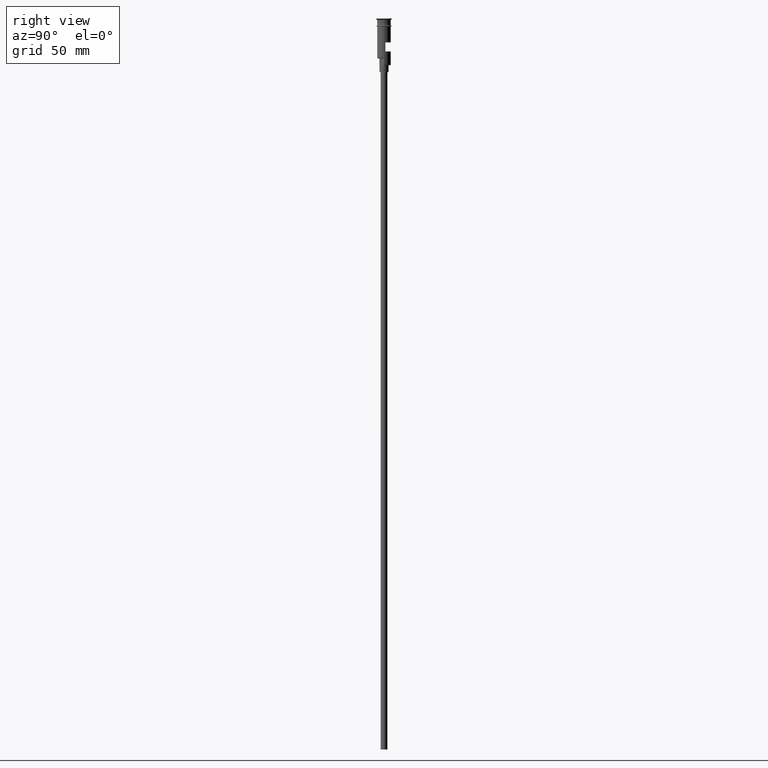
[diagram: clean part render]
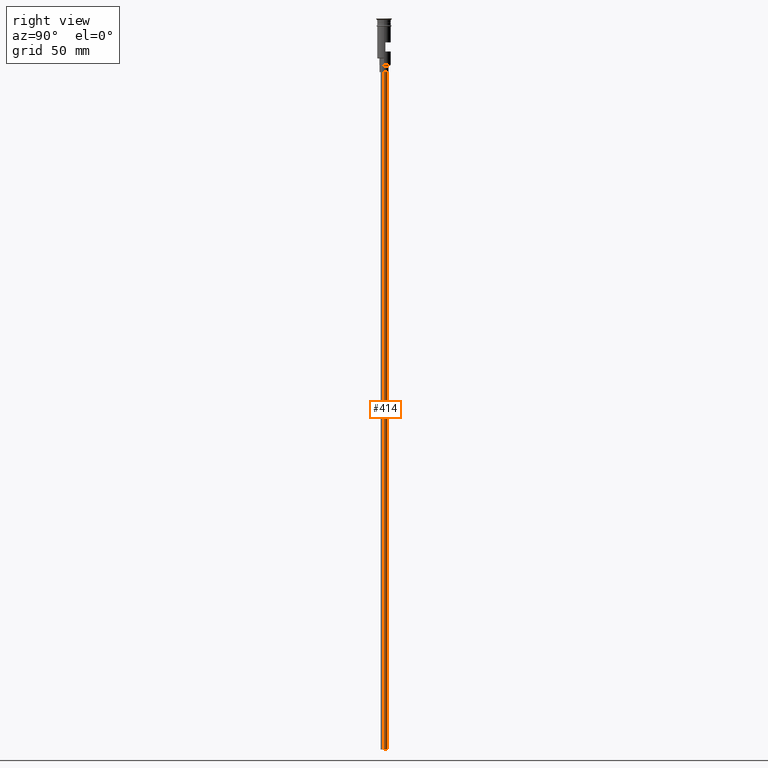
[diagram: same view with one face highlighted and labeled with its STEP entity id]
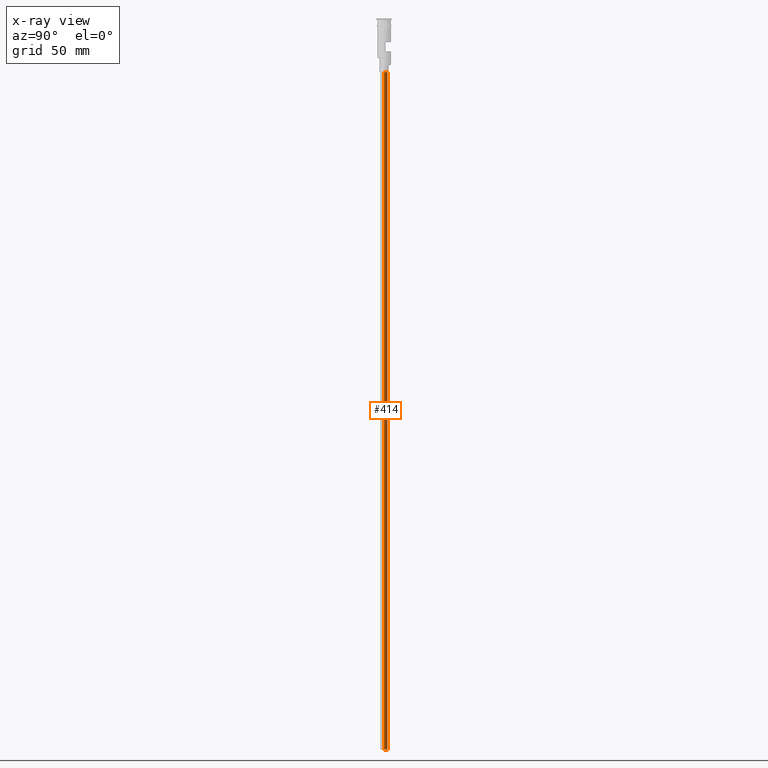
[diagram: x-ray of the same camera — body ghosted, the highlighted face saturated]
A machine part, right view. The second image highlights one B-rep face of the part: STEP entity #414.
The next image is the same camera in x-ray: the body ghosted, the highlighted face saturated — about 0% of this face is hidden behind the body in this view.
In plain terms, the highlighted cylindrical surface (edge-blend (fillet) strip) has radius 1.5 mm, axis along (-0, -0, 1).
Its self-contained STEP definition (entity closure, byte-faithful):
#95 = AXIS2_PLACEMENT_3D ( 'NONE', #1241, #1604, #489 ) ;
#131 = VECTOR ( 'NONE', #1316, 1000.000000000000000 ) ;
#186 = EDGE_CURVE ( 'NONE', #407, #883, #1570, .T. ) ;
#240 = DIRECTION ( 'NONE',  ( 0.000000000000000000, 0.000000000000000000, -1.000000000000000000 ) ) ;
#253 = EDGE_CURVE ( 'NONE', #1477, #407, #1020, .T. ) ;
#387 = ORIENTED_EDGE ( 'NONE', *, *, #622, .T. ) ;
#407 = VERTEX_POINT ( 'NONE', #842 ) ;
#414 = ADVANCED_FACE ( 'NONE', ( #859 ), #740, .T. ) ;
#425 = VECTOR ( 'NONE', #1074, 1000.000000000000000 ) ;
#466 = EDGE_LOOP ( 'NONE', ( #676, #1322, #387, #529 ) ) ;
#467 = EDGE_CURVE ( 'NONE', #1477, #478, #812, .T. ) ;
#478 = VERTEX_POINT ( 'NONE', #1133 ) ;
#485 = CARTESIAN_POINT ( 'NONE',  ( -1.500000000000000222, 1.836970198721030181E-16, -320.5000000000000000 ) ) ;
#489 = DIRECTION ( 'NONE',  ( 1.000000000000000000, 0.000000000000000000, 0.000000000000000000 ) ) ;
#529 = ORIENTED_EDGE ( 'NONE', *, *, #186, .F. ) ;
#574 = CARTESIAN_POINT ( 'NONE',  ( -1.500000000000000222, 1.836970198721030181E-16, -320.5000000000000000 ) ) ;
#622 = EDGE_CURVE ( 'NONE', #478, #883, #1572, .T. ) ;
#676 = ORIENTED_EDGE ( 'NONE', *, *, #253, .F. ) ;
#740 = CYLINDRICAL_SURFACE ( 'NONE', #95, 1.500000000000000222 ) ;
#812 = LINE ( 'NONE', #574, #425 ) ;
#841 = AXIS2_PLACEMENT_3D ( 'NONE', #934, #240, #1484 ) ;
#842 = CARTESIAN_POINT ( 'NONE',  ( 1.500000000000000222, 0.000000000000000000, -320.5000000000000000 ) ) ;
#859 = FACE_OUTER_BOUND ( 'NONE', #466, .T. ) ;
#883 = VERTEX_POINT ( 'NONE', #922 ) ;
#921 = CARTESIAN_POINT ( 'NONE',  ( 1.500000000000000222, 0.000000000000000000, -320.5000000000000000 ) ) ;
#922 = CARTESIAN_POINT ( 'NONE',  ( 1.500000000000000222, 0.000000000000000000, -23.50000000000000000 ) ) ;
#932 = CARTESIAN_POINT ( 'NONE',  ( 0.000000000000000000, 0.000000000000000000, -320.5000000000000000 ) ) ;
#934 = CARTESIAN_POINT ( 'NONE',  ( 0.000000000000000000, 0.000000000000000000, -23.50000000000000000 ) ) ;
#1020 = CIRCLE ( 'NONE', #1445, 1.500000000000000222 ) ;
#1074 = DIRECTION ( 'NONE',  ( -0.000000000000000000, -0.000000000000000000, 1.000000000000000000 ) ) ;
#1079 = DIRECTION ( 'NONE',  ( -1.000000000000000000, 0.000000000000000000, 0.000000000000000000 ) ) ;
#1133 = CARTESIAN_POINT ( 'NONE',  ( -1.500000000000000222, 1.836970198721030181E-16, -23.50000000000000000 ) ) ;
#1205 = DIRECTION ( 'NONE',  ( 0.000000000000000000, 0.000000000000000000, -1.000000000000000000 ) ) ;
#1241 = CARTESIAN_POINT ( 'NONE',  ( 0.000000000000000000, 0.000000000000000000, -320.5000000000000000 ) ) ;
#1316 = DIRECTION ( 'NONE',  ( -0.000000000000000000, -0.000000000000000000, 1.000000000000000000 ) ) ;
#1322 = ORIENTED_EDGE ( 'NONE', *, *, #467, .T. ) ;
#1445 = AXIS2_PLACEMENT_3D ( 'NONE', #932, #1205, #1079 ) ;
#1477 = VERTEX_POINT ( 'NONE', #485 ) ;
#1484 = DIRECTION ( 'NONE',  ( -1.000000000000000000, 0.000000000000000000, 0.000000000000000000 ) ) ;
#1570 = LINE ( 'NONE', #921, #131 ) ;
#1572 = CIRCLE ( 'NONE', #841, 1.500000000000000222 ) ;
#1604 = DIRECTION ( 'NONE',  ( -0.000000000000000000, -0.000000000000000000, 1.000000000000000000 ) ) ;